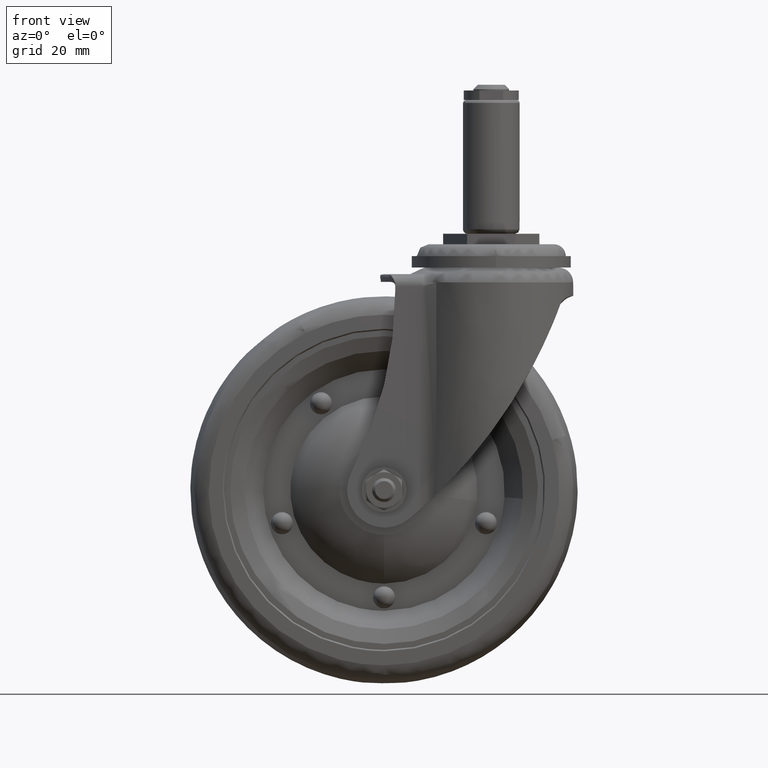
[diagram: clean part render]
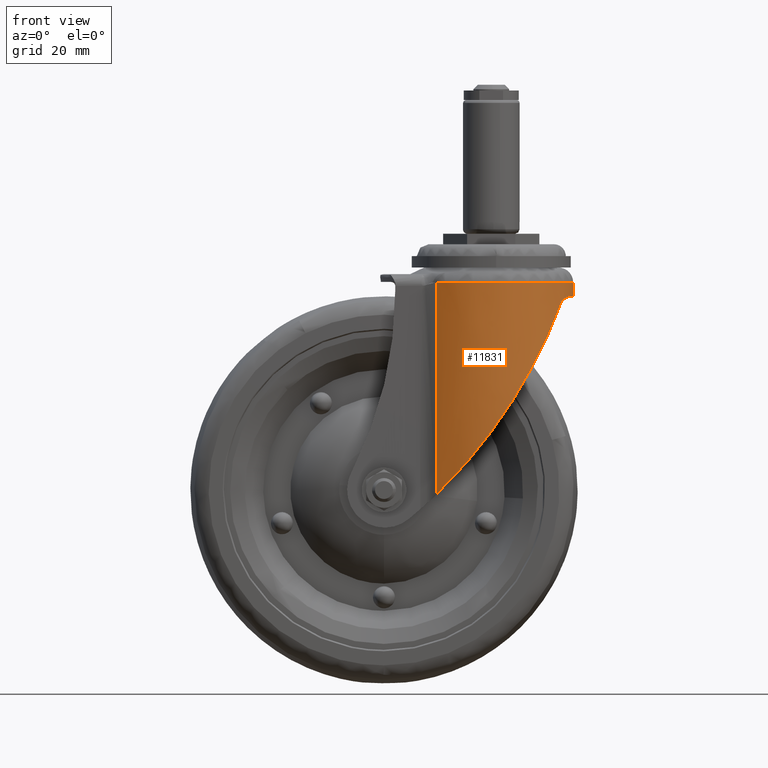
[diagram: same view with one face highlighted and labeled with its STEP entity id]
A machine part, front view. The second image highlights one B-rep face of the part: STEP entity #11831.
In plain terms, the highlighted face is a freeform B-spline surface patch.
Its self-contained STEP definition (entity closure, byte-faithful):
#9174=CARTESIAN_POINT('',(-18.434040863337351,20.406766952381449,-15.314989000000050));
#9175=VERTEX_POINT('',#9174);
#9176=CARTESIAN_POINT('',(17.950478997971452,20.833393956389720,-15.314999156944291));
#9177=VERTEX_POINT('',#9176);
#9178=CARTESIAN_POINT('',(-18.434040863337351,20.406766952381449,-15.314989000000050));
#9179=CARTESIAN_POINT('',(-0.429978776232528,36.670372892223099,-15.314994078472163));
#9180=CARTESIAN_POINT('',(17.950478997971445,20.833393956389724,-15.314999156944284));
#9188=(BOUNDED_CURVE()B_SPLINE_CURVE(2,(#9178,#9179,#9180),.UNSPECIFIED.,.F.,.U.)B_SPLINE_CURVE_WITH_KNOTS((3,3),(0.0,0.311865964459015),.UNSPECIFIED.)CURVE()GEOMETRIC_REPRESENTATION_ITEM()RATIONAL_B_SPLINE_CURVE((1.0,0.737065273776559,0.966132899453761))REPRESENTATION_ITEM(''));
#9189=EDGE_CURVE('',#9175,#9177,#9188,.T.);
#9239=CARTESIAN_POINT('',(-18.434040863337351,-20.406766952381449,-15.314989000000050));
#9240=VERTEX_POINT('',#9239);
#9272=CARTESIAN_POINT('',(27.491315205290750,-0.691077624691770,-15.314988999927690));
#9273=VERTEX_POINT('',#9272);
#9274=CARTESIAN_POINT('',(27.491315205290743,-0.691077624691770,-15.314988999927687));
#9275=CARTESIAN_POINT('',(27.221939112714360,-11.406954980857277,-15.314989000000049));
#9276=CARTESIAN_POINT('',(19.771567708382339,-19.113741401223699,-15.314989000000050));
#9277=CARTESIAN_POINT('',(1.293765859722396,-38.227482802447369,-15.314989000000050));
#9278=CARTESIAN_POINT('',(-18.434040863337369,-20.406766952381449,-15.314989000000050));
#9286=(BOUNDED_CURVE()B_SPLINE_CURVE(2,(#9274,#9275,#9276,#9277,#9278),.UNSPECIFIED.,.F.,.U.)B_SPLINE_CURVE_WITH_KNOTS((3,2,3),(0.505180071738647,0.666666666666667,1.0),.UNSPECIFIED.)CURVE()GEOMETRIC_REPRESENTATION_ITEM()RATIONAL_B_SPLINE_CURVE((0.859618787656025,0.863850376555809,1.0,0.718966098486631,1.0))REPRESENTATION_ITEM(''));
#9287=EDGE_CURVE('',#9273,#9240,#9286,.T.);
#9371=CARTESIAN_POINT('',(17.950478997971445,20.833393956389724,-15.314999156944284));
#9372=CARTESIAN_POINT('',(18.900220655129534,20.015077089441785,-15.314998668174223));
#9373=CARTESIAN_POINT('',(19.771567708368959,19.113741401208159,-15.314998160366770));
#9374=CARTESIAN_POINT('',(27.780901164627341,10.828755463342507,-15.314993492652393));
#9375=CARTESIAN_POINT('',(27.491315205290746,-0.691077624691770,-15.314988999927689));
#9383=(BOUNDED_CURVE()B_SPLINE_CURVE(2,(#9371,#9372,#9373,#9374,#9375),.UNSPECIFIED.,.F.,.U.)B_SPLINE_CURVE_WITH_KNOTS((3,2,3),(0.311865964459015,0.333333333333333,0.505180071738647),.UNSPECIFIED.)CURVE()GEOMETRIC_REPRESENTATION_ITEM()RATIONAL_B_SPLINE_CURVE((0.966132899453761,0.981900824710071,1.0,0.855115721930822,0.859618787656024))REPRESENTATION_ITEM(''));
#9384=EDGE_CURVE('',#9177,#9273,#9383,.T.);
#11219=CARTESIAN_POINT('',(-18.434040863337351,-20.406766952381449,-86.419411327150399));
#11220=VERTEX_POINT('',#11219);
#11240=CARTESIAN_POINT('',(-18.434040863337351,-20.406766952381449,-15.314989000000050));
#11241=CARTESIAN_POINT('',(-18.434040863337351,-20.406766952381449,-86.419411327150399));
#11242=QUASI_UNIFORM_CURVE('',1,(#11240,#11241),.UNSPECIFIED.,.F.,.U.);
#11243=EDGE_CURVE('',#9240,#11220,#11242,.T.);
#11433=CARTESIAN_POINT('',(-18.434040863337401,20.406766952381449,-86.419411327150499));
#11434=VERTEX_POINT('',#11433);
#11435=CARTESIAN_POINT('',(-18.434040863337401,20.406766952381449,-86.419411327150499));
#11436=CARTESIAN_POINT('',(-18.434040863337351,20.406766952381449,-15.314989000000050));
#11437=QUASI_UNIFORM_CURVE('',1,(#11435,#11436),.UNSPECIFIED.,.F.,.U.);
#11438=EDGE_CURVE('',#11434,#9175,#11437,.T.);
#11584=CARTESIAN_POINT('',(-19.255863254799230,19.633179322577181,-88.197021885331068));
#11585=CARTESIAN_POINT('',(-19.255863254799230,19.633179322577181,-13.492938177792610));
#11586=CARTESIAN_POINT('',(0.377316067777950,38.889042577376401,-88.197021885331083));
#11587=CARTESIAN_POINT('',(0.377316067777950,38.889042577376401,-13.492938177792610));
#11588=CARTESIAN_POINT('',(19.633179322577170,19.255863254799230,-88.197021885331068));
#11589=CARTESIAN_POINT('',(19.633179322577170,19.255863254799230,-13.492938177792610));
#11590=CARTESIAN_POINT('',(38.889042577376401,-0.377316067777942,-88.197021885331083));
#11591=CARTESIAN_POINT('',(38.889042577376401,-0.377316067777942,-13.492938177792610));
#11592=CARTESIAN_POINT('',(19.255863254799230,-19.633179322577170,-88.197021885331068));
#11593=CARTESIAN_POINT('',(19.255863254799230,-19.633179322577170,-13.492938177792610));
#11594=CARTESIAN_POINT('',(-0.377316067777932,-38.889042577376401,-88.197021885331083));
#11595=CARTESIAN_POINT('',(-0.377316067777932,-38.889042577376401,-13.492938177792610));
#11596=CARTESIAN_POINT('',(-19.633179322577170,-19.255863254799241,-88.197021885331068));
#11597=CARTESIAN_POINT('',(-19.633179322577170,-19.255863254799241,-13.492938177792610));
#11605=(BOUNDED_SURFACE()B_SPLINE_SURFACE(1,2,((#11584,#11586,#11588,#11590,#11592,#11594,#11596),(#11585,#11587,#11589,#11591,#11593,#11595,#11597)),.UNSPECIFIED.,.F.,.F.,.U.)B_SPLINE_SURFACE_WITH_KNOTS((2,2),(3,2,2,3),(0.0,74.704083707538473),(0.0,45.563491861040433,91.126983722080865,136.690475583121300),.UNSPECIFIED.)GEOMETRIC_REPRESENTATION_ITEM()RATIONAL_B_SPLINE_SURFACE(((1.0,0.707106781186548,1.0,0.707106781186548,1.0,0.707106781186548,1.0),(1.0,0.707106781186548,1.0,0.707106781186548,1.0,0.707106781186548,1.0)))REPRESENTATION_ITEM('')SURFACE());
#11606=CARTESIAN_POINT('',(23.210853167600149,14.748094630565140,-22.579567991240548));
#11607=VERTEX_POINT('',#11606);
#11608=CARTESIAN_POINT('',(-18.434040863337401,20.406766952381449,-86.419411327150499));
#11609=CARTESIAN_POINT('',(-18.114330600401139,20.695571998270349,-86.109964928882405));
#11610=CARTESIAN_POINT('',(-17.792135197032941,20.972989615516688,-85.795706876387499));
#11611=CARTESIAN_POINT('',(-16.791749538861719,21.795716588598669,-84.812096195782715));
#11612=CARTESIAN_POINT('',(-16.106358573095200,22.305475738060100,-84.127179838570058));
#11613=CARTESIAN_POINT('',(-14.721555822423820,23.242737114065619,-82.718768741971772));
#11614=CARTESIAN_POINT('',(-14.022129872635460,23.670201524165730,-81.995263770256130));
#11615=CARTESIAN_POINT('',(-12.612925997162980,24.450207854939890,-80.510764125417850));
#11616=CARTESIAN_POINT('',(-11.903139576113810,24.802727580927719,-79.749763623718508));
#11617=CARTESIAN_POINT('',(-11.011312293551860,25.199982703868240,-78.775436843055033));
#11618=CARTESIAN_POINT('',(-10.832586304415781,25.277314302249120,-78.579273664790222));
#11619=CARTESIAN_POINT('',(-10.475322912396280,25.427448835035140,-78.185314160309744));
#11620=CARTESIAN_POINT('',(-10.296986437768080,25.500171165916420,-77.987740894375250));
#11621=CARTESIAN_POINT('',(-9.762887994876092,25.711527662936781,-77.393253726284513));
#11622=CARTESIAN_POINT('',(-9.408037443193456,25.843355939257261,-76.994572792866634));
#11623=CARTESIAN_POINT('',(-8.347316261806546,26.213225100473121,-75.791553564347865));
#11624=CARTESIAN_POINT('',(-7.645281151427469,26.425704872143100,-74.980242949274142));
#11625=CARTESIAN_POINT('',(-6.252276638727106,26.789498664715751,-73.339400708979767));
#11626=CARTESIAN_POINT('',(-5.561305486730891,26.940795580302890,-72.509867932099098));
#11627=CARTESIAN_POINT('',(-4.191124133632424,27.187663814916029,-70.832834654806021));
#11628=CARTESIAN_POINT('',(-3.511912777406409,27.283224156988840,-69.985333441645878));
#11629=CARTESIAN_POINT('',(-2.165848143823872,27.422927516487078,-68.272525990752214));
#11630=CARTESIAN_POINT('',(-1.498994071780109,27.467063290365751,-67.407219309093875));
#11631=CARTESIAN_POINT('',(-0.508377120403850,27.497285137982221,-66.095972183241088));
#11632=CARTESIAN_POINT('',(-0.179781688758109,27.501355983398810,-65.656674752656997));
#11633=CARTESIAN_POINT('',(0.310650231818936,27.498731280347840,-64.994409873920475));
#11634=CARTESIAN_POINT('',(0.473717356886482,27.496400893907740,-64.773101761941660));
#11635=CARTESIAN_POINT('',(0.799023846444448,27.488871041669199,-64.329379520026137));
#11636=CARTESIAN_POINT('',(0.961359221335940,27.483667198984399,-64.106832748164706));
#11637=CARTESIAN_POINT('',(1.769607448569998,27.450633464268499,-62.993185411469383));
#11638=CARTESIAN_POINT('',(2.404879511714453,27.401846033938028,-62.099866233587839));
#11639=CARTESIAN_POINT('',(4.277954554273106,27.194255845042179,-59.412280782017767));
#11640=CARTESIAN_POINT('',(5.483070149325093,26.974523966298449,-57.610359187532183));
#11641=CARTESIAN_POINT('',(7.811097773235298,26.394615985988281,-53.984689433147132));
#11642=CARTESIAN_POINT('',(8.933991730503234,26.034350207138381,-52.160948318543753));
#11643=CARTESIAN_POINT('',(11.101002350557771,25.186729556683950,-48.491038372583994));
#11644=CARTESIAN_POINT('',(12.145109684981710,24.699353907482749,-46.644868039255734));
#11645=CARTESIAN_POINT('',(13.653919371270661,23.877781073200030,-43.858879134052877));
#11646=CARTESIAN_POINT('',(14.147289431926779,23.588785920640898,-42.927433022918287));
#11647=CARTESIAN_POINT('',(14.873145684659370,23.132686664394139,-41.526161046438517));
#11648=CARTESIAN_POINT('',(15.112730850452330,22.976882139594260,-41.058387056623211));
#11649=CARTESIAN_POINT('',(15.468573116427629,22.737495077415350,-40.355714811801967));
#11650=CARTESIAN_POINT('',(15.586643077152241,22.656720656018749,-40.121231699286668));
#11651=CARTESIAN_POINT('',(15.821333877500701,22.493461886424981,-39.652477332334101));
#11652=CARTESIAN_POINT('',(15.937956166487590,22.410977939310680,-39.418204577198331));
#11653=CARTESIAN_POINT('',(16.981098752939300,21.660945008390360,-37.310704186303973));
#11654=CARTESIAN_POINT('',(17.862503107929371,20.940072032706549,-35.443995159643947));
#11655=CARTESIAN_POINT('',(19.119186243229372,19.774557539946130,-32.656681422798172));
#11656=CARTESIAN_POINT('',(19.527159969514951,19.371942680723400,-31.729731098952708));
#11657=CARTESIAN_POINT('',(20.321611632959051,18.536834690406131,-29.881079542150250));
#11658=CARTESIAN_POINT('',(20.708090499783019,18.104354630800749,-28.959372436443608));
#11659=CARTESIAN_POINT('',(21.459740805142051,17.206748481950939,-27.122613372531930));
#11660=CARTESIAN_POINT('',(21.824914232460259,16.741645696098949,-26.207551084451090));
#11661=CARTESIAN_POINT('',(22.533942636811020,15.774378311327050,-24.386193458895779));
#11662=CARTESIAN_POINT('',(22.877801744259870,15.272257776927880,-23.479878744662951));
#11663=CARTESIAN_POINT('',(23.210853167600149,14.748094630565140,-22.579567991240548));
#11664=B_SPLINE_CURVE_WITH_KNOTS('',3,(#11608,#11609,#11610,#11611,#11612,#11613,#11614,#11615,#11616,#11617,#11618,#11619,#11620,#11621,#11622,#11623,#11624,#11625,#11626,#11627,#11628,#11629,#11630,#11631,#11632,#11633,#11634,#11635,#11636,#11637,#11638,#11639,#11640,#11641,#11642,#11643,#11644,#11645,#11646,#11647,#11648,#11649,#11650,#11651,#11652,#11653,#11654,#11655,#11656,#11657,#11658,#11659,#11660,#11661,#11662,#11663),.UNSPECIFIED.,.F.,.U.,(4,2,2,2,2,2,2,2,2,2,2,2,2,2,2,2,2,2,2,2,2,2,2,2,2,2,2,4),(0.617503068958084,0.624999999999997,0.640624999999997,0.656249999999996,0.671874999999996,0.675781249999996,0.679687499999997,0.687499999999997,0.703124999999997,0.718749999999998,0.734374999999998,0.749999999999998,0.757812499999999,0.761718749999999,0.765624999999999,0.781249999999999,0.812500000000000,0.843750000000000,0.875000000000001,0.890625000000001,0.898437500000001,0.902343750000001,0.906250000000001,0.937500000000001,0.953125000000001,0.968750000000001,0.984375000000000,1.0),.UNSPECIFIED.);
#11665=EDGE_CURVE('',#11434,#11607,#11664,.T.);
#11666=ORIENTED_EDGE('',*,*,#11665,.F.);
#11667=ORIENTED_EDGE('',*,*,#11438,.T.);
#11668=ORIENTED_EDGE('',*,*,#9189,.T.);
#11669=ORIENTED_EDGE('',*,*,#9384,.T.);
#11670=ORIENTED_EDGE('',*,*,#9287,.T.);
#11671=ORIENTED_EDGE('',*,*,#11243,.T.);
#11672=CARTESIAN_POINT('',(23.210853167600149,-14.748094630565140,-22.579567991240548));
#11673=VERTEX_POINT('',#11672);
#11674=CARTESIAN_POINT('',(23.210853167600170,-14.748094630565170,-22.579567991240541));
#11675=CARTESIAN_POINT('',(22.878007453622310,-15.271934027323169,-23.479322667318449));
#11676=CARTESIAN_POINT('',(22.534521231237239,-15.773518760541920,-24.384658511145759));
#11677=CARTESIAN_POINT('',(21.826586424739990,-16.739434466361342,-26.203304039549700));
#11678=CARTESIAN_POINT('',(21.462133761253799,-17.203720103318691,-27.116632739708979));
#11679=CARTESIAN_POINT('',(20.712295323401399,-18.099502573703159,-28.949229337058419));
#11680=CARTESIAN_POINT('',(20.326907578699259,-18.530975503070660,-29.868507339036270));
#11681=CARTESIAN_POINT('',(19.535038856611830,-19.363947987924661,-31.711641982718572));
#11682=CARTESIAN_POINT('',(19.128556943566188,-19.765434144957400,-32.635504361569353));
#11683=CARTESIAN_POINT('',(17.877007359320569,-20.927468040888439,-35.412595227897050));
#11684=CARTESIAN_POINT('',(16.999898136257151,-21.645892484329519,-37.271216364147080));
#11685=CARTESIAN_POINT('',(15.617098415459290,-22.642416757127030,-40.067169740321397));
#11686=CARTESIAN_POINT('',(15.144960222298620,-22.960989643194580,-41.000522471819032));
#11687=CARTESIAN_POINT('',(14.540344009726519,-23.341997026270651,-42.168828358462520));
#11688=CARTESIAN_POINT('',(14.418698256158370,-23.417336789585899,-42.402570723344979));
#11689=CARTESIAN_POINT('',(14.173949414375150,-23.566282687725110,-42.870217156207602));
#11690=CARTESIAN_POINT('',(14.050795325356599,-23.639918538168491,-43.104217349774459));
#11691=CARTESIAN_POINT('',(13.679535600772359,-23.857969251644661,-43.805691212616480));
#11692=CARTESIAN_POINT('',(13.429728387446140,-23.999477141571639,-44.272462296727170));
#11693=CARTESIAN_POINT('',(12.169150165314029,-24.687687342567241,-46.601907337922597));
#11694=CARTESIAN_POINT('',(11.123783557588411,-25.176670791489919,-48.451328315521920));
#11695=CARTESIAN_POINT('',(8.957773505966332,-26.026171570074279,-52.121778287832797));
#11696=CARTESIAN_POINT('',(7.837135932242301,-26.386698163539521,-53.942809613374742));
#11697=CARTESIAN_POINT('',(5.518250799035418,-26.967154979959020,-57.556862253183859));
#11698=CARTESIAN_POINT('',(4.320014859120239,-27.187157409630831,-59.349879838381717));
#11699=CARTESIAN_POINT('',(2.461862633217328,-27.396674003881099,-62.019065984464731));
#11700=CARTESIAN_POINT('',(1.832335722624307,-27.446363400616999,-62.905408962493858));
#11701=CARTESIAN_POINT('',(0.552418985321303,-27.501911776889081,-64.671500079661371));
#11702=CARTESIAN_POINT('',(-0.097969857848080,-27.507778569090078,-65.551247639763474));
#11703=CARTESIAN_POINT('',(-0.924433068920903,-27.484955266377678,-66.646957330640817));
#11704=CARTESIAN_POINT('',(-1.090399918529571,-27.478880207971049,-66.865900702826536));
#11705=CARTESIAN_POINT('',(-1.423694486725496,-27.463629102411431,-67.303394745740704));
#11706=CARTESIAN_POINT('',(-1.591096107514684,-27.454448210101098,-67.522041378040740));
#11707=CARTESIAN_POINT('',(-2.094859467069771,-27.422159236484571,-68.176746843699405));
#11708=CARTESIAN_POINT('',(-2.432113007851986,-27.394354623905940,-68.610708807963249));
#11709=CARTESIAN_POINT('',(-3.447970869939691,-27.291479488169319,-69.905052975567429));
#11710=CARTESIAN_POINT('',(-4.130675850828118,-27.196976456019492,-70.757896636518296));
#11711=CARTESIAN_POINT('',(-5.506217965641431,-26.952171991302290,-72.443319176395931));
#11712=CARTESIAN_POINT('',(-6.199056481171867,-26.801879969829631,-73.275898874028755));
#11713=CARTESIAN_POINT('',(-7.593941434837703,-26.440520506566589,-74.920523318187350));
#11714=CARTESIAN_POINT('',(-8.295989935080593,-26.229467592884241,-75.732569388032928));
#11715=CARTESIAN_POINT('',(-9.708194659208830,-25.740228741563900,-77.335713842104354));
#11716=CARTESIAN_POINT('',(-10.418354107034530,-25.462066064772671,-78.126814410422583));
#11717=CARTESIAN_POINT('',(-11.310274966295770,-25.067224359677990,-79.102218902111360));
#11718=CARTESIAN_POINT('',(-11.489018223403759,-24.985821264169321,-79.296785986091123));
#11719=CARTESIAN_POINT('',(-11.845776425376799,-24.818670086503559,-79.683345125229110));
#11720=CARTESIAN_POINT('',(-12.380049824950390,-24.561334895209630,-80.259576202170294));
#11721=CARTESIAN_POINT('',(-12.911526003525969,-24.283837641679050,-80.824958944012764));
#11722=CARTESIAN_POINT('',(-13.970150413034659,-23.700928142708008,-81.941151044673447));
#11723=CARTESIAN_POINT('',(-14.670154949735890,-23.275168354197049,-82.665867745958067));
#11724=CARTESIAN_POINT('',(-16.054957103645449,-22.342454219838519,-84.075481257019220));
#11725=CARTESIAN_POINT('',(-16.739768191711761,-21.835533828633061,-84.760387742546257));
#11726=CARTESIAN_POINT('',(-17.752076090684699,-21.007234197864950,-85.756584868832562));
#11727=CARTESIAN_POINT('',(-18.087018485551390,-20.719791808334922,-86.083450141937746));
#11728=CARTESIAN_POINT('',(-18.424085900122979,-20.415756260668449,-86.409775373872577));
#11729=CARTESIAN_POINT('',(-18.429063703911940,-20.411262969868218,-86.414593953787360));
#11730=CARTESIAN_POINT('',(-18.434040863337351,-20.406766952381449,-86.419411327150399));
#11731=B_SPLINE_CURVE_WITH_KNOTS('',3,(#11674,#11675,#11676,#11677,#11678,#11679,#11680,#11681,#11682,#11683,#11684,#11685,#11686,#11687,#11688,#11689,#11690,#11691,#11692,#11693,#11694,#11695,#11696,#11697,#11698,#11699,#11700,#11701,#11702,#11703,#11704,#11705,#11706,#11707,#11708,#11709,#11710,#11711,#11712,#11713,#11714,#11715,#11716,#11717,#11718,#11719,#11720,#11721,#11722,#11723,#11724,#11725,#11726,#11727,#11728,#11729,#11730),.UNSPECIFIED.,.F.,.U.,(4,2,2,2,2,2,2,2,2,2,2,2,2,2,2,2,2,2,2,2,2,2,2,1,2,2,2,2,4),(0.0,0.015625000000000,0.031250000000000,0.046875000000000,0.062500000000000,0.093750000000000,0.109375000000000,0.113281250000000,0.117187500000000,0.125000000000000,0.156250000000000,0.187500000000000,0.218750000000000,0.234375000000000,0.250000000000000,0.253906250000000,0.257812500000000,0.265625000000000,0.281250000000000,0.296875000000000,0.312500000000001,0.328125000000001,0.332031250000001,0.335937500000001,0.343750000000001,0.359375000000001,0.375000000000001,0.382812500000001,0.382929619541299),.UNSPECIFIED.);
#11732=EDGE_CURVE('',#11673,#11220,#11731,.T.);
#11733=ORIENTED_EDGE('',*,*,#11732,.F.);
#11734=CARTESIAN_POINT('',(27.352143000000101,-2.847854158405190,-19.872998999999950));
#11735=VERTEX_POINT('',#11734);
#11736=CARTESIAN_POINT('',(23.210853167600149,-14.748094630565140,-22.579567991240548));
#11737=CARTESIAN_POINT('',(23.268521395018350,-14.657335083997999,-22.447985415271361));
#11738=CARTESIAN_POINT('',(23.330540716443270,-14.558550632259371,-22.323451291131001));
#11739=CARTESIAN_POINT('',(23.461541123176708,-14.346484150887060,-22.086748647959361));
#11740=CARTESIAN_POINT('',(23.529272040215481,-14.235221195408229,-21.976801281183171));
#11741=CARTESIAN_POINT('',(23.736973592514062,-13.888080757519830,-21.667526697351381));
#11742=CARTESIAN_POINT('',(23.881360051234012,-13.638967989590171,-21.488547660868580));
#11743=CARTESIAN_POINT('',(24.101256465261709,-13.243945689550360,-21.250057761549701));
#11744=CARTESIAN_POINT('',(24.175313978389820,-13.108330850649869,-21.175492014600909));
#11745=CARTESIAN_POINT('',(24.322060184264611,-12.833998725635629,-21.036996367224081));
#11746=CARTESIAN_POINT('',(24.394964041682432,-12.694909199218261,-20.972812860439142));
#11747=CARTESIAN_POINT('',(24.611756621191070,-12.272391222840140,-20.793177524122029));
#11748=CARTESIAN_POINT('',(24.753705629896171,-11.983737165475871,-20.690540595819041));
#11749=CARTESIAN_POINT('',(25.030467570228119,-11.394365876370010,-20.511076619608890));
#11750=CARTESIAN_POINT('',(25.165292341033471,-11.093634193450040,-20.434309427779109));
#11751=CARTESIAN_POINT('',(25.361132085974528,-10.634403672508640,-20.334308255144990));
#11752=CARTESIAN_POINT('',(25.425442544143468,-10.479734345152011,-20.303473651194139));
#11753=CARTESIAN_POINT('',(25.551303534396379,-10.169013654923040,-20.246532785269419));
#11754=CARTESIAN_POINT('',(25.612805717812051,-10.013097328269930,-20.220441164401731));
#11755=CARTESIAN_POINT('',(25.793007619046609,-9.543738026993815,-20.148361647271841));
#11756=CARTESIAN_POINT('',(25.907402357991518,-9.228686858314907,-20.108536002045039));
#11757=CARTESIAN_POINT('',(26.124625415355951,-8.594538149777479,-20.041347653009701));
#11758=CARTESIAN_POINT('',(26.227454364809670,-8.275439883886433,-20.013998390917099));
#11759=CARTESIAN_POINT('',(26.518469472220691,-7.312347664666807,-19.946080459204069));
#11760=CARTESIAN_POINT('',(26.689195362000429,-6.662572809705965,-19.919442747182110));
#11761=CARTESIAN_POINT('',(26.909738115172271,-5.677062219071041,-19.894116104865930));
#11762=CARTESIAN_POINT('',(26.977325619768479,-5.346746130890485,-19.888169493814129));
#11763=CARTESIAN_POINT('',(27.069710606278491,-4.848606644082676,-19.881755769098341));
#11764=CARTESIAN_POINT('',(27.099005987182849,-4.682115686279973,-19.880038108156260));
#11765=CARTESIAN_POINT('',(27.154576728890468,-4.348250953615624,-19.877266105238402));
#11766=CARTESIAN_POINT('',(27.180874030893300,-4.180722883164155,-19.876211178232172));
#11767=CARTESIAN_POINT('',(27.262908357901470,-3.624607538730778,-19.873552559010651));
#11768=CARTESIAN_POINT('',(27.311715016368460,-3.236161468085775,-19.872987707398849));
#11769=CARTESIAN_POINT('',(27.352143000000101,-2.847854158405190,-19.872998999999950));
#11770=B_SPLINE_CURVE_WITH_KNOTS('',3,(#11736,#11737,#11738,#11739,#11740,#11741,#11742,#11743,#11744,#11745,#11746,#11747,#11748,#11749,#11750,#11751,#11752,#11753,#11754,#11755,#11756,#11757,#11758,#11759,#11760,#11761,#11762,#11763,#11764,#11765,#11766,#11767,#11768,#11769),.UNSPECIFIED.,.F.,.U.,(4,2,2,2,2,2,2,2,2,2,2,2,2,2,2,2,4),(0.0,0.015625000000000,0.031250000000000,0.062500000000000,0.078125000000000,0.093749999999999,0.124999999999999,0.156249999999999,0.171874999999999,0.187499999999999,0.218749999999999,0.249999999999999,0.312499999999999,0.343749999999999,0.359374999999999,0.374999999999999,0.411242879470781),.UNSPECIFIED.);
#11771=EDGE_CURVE('',#11673,#11735,#11770,.T.);
#11772=ORIENTED_EDGE('',*,*,#11771,.T.);
#11773=CARTESIAN_POINT('',(27.352143000000101,2.847854158405190,-19.872998999999950));
#11774=VERTEX_POINT('',#11773);
#11775=CARTESIAN_POINT('',(27.352143000000101,2.847854158405188,-19.872998999999950));
#11776=CARTESIAN_POINT('',(27.648656267993239,6.505213E-015,-19.872998999999947));
#11777=CARTESIAN_POINT('',(27.352143000000101,-2.847854158405180,-19.872998999999950));
#11785=(BOUNDED_CURVE()B_SPLINE_CURVE(2,(#11775,#11776,#11777),.UNSPECIFIED.,.F.,.U.)CURVE()GEOMETRIC_REPRESENTATION_ITEM()QUASI_UNIFORM_CURVE()RATIONAL_B_SPLINE_CURVE((1.0,0.994623381818185,1.0))REPRESENTATION_ITEM(''));
#11786=EDGE_CURVE('',#11774,#11735,#11785,.T.);
#11787=ORIENTED_EDGE('',*,*,#11786,.F.);
#11788=CARTESIAN_POINT('',(27.352143000000101,2.847854158405190,-19.872998999999950));
#11789=CARTESIAN_POINT('',(27.311847766734122,3.234885507203980,-19.872988124406010));
#11790=CARTESIAN_POINT('',(27.263257739665871,3.621779483607117,-19.873548691640121));
#11791=CARTESIAN_POINT('',(27.157147680442659,4.341960146044727,-19.876971488687481));
#11792=CARTESIAN_POINT('',(27.101776428932659,4.675282545664105,-19.879544307805421));
#11793=CARTESIAN_POINT('',(26.978336734220541,5.341714800730202,-19.888082669551789));
#11794=CARTESIAN_POINT('',(26.910515339187359,5.673450624847200,-19.894034827599921));
#11795=CARTESIAN_POINT('',(26.689262674112161,6.662551043265116,-19.919416128769541));
#11796=CARTESIAN_POINT('',(26.517928370173529,7.314502612913231,-19.946147914552508));
#11797=CARTESIAN_POINT('',(26.225854437210749,8.280551916107084,-20.014400301147770));
#11798=CARTESIAN_POINT('',(26.122648099256821,8.600584493274187,-20.041893571231451));
#11799=CARTESIAN_POINT('',(25.904630081836359,9.236501269137083,-20.109459242666020));
#11800=CARTESIAN_POINT('',(25.789817763597650,9.552386196557219,-20.149518010554239));
#11801=CARTESIAN_POINT('',(25.608965716531682,10.022922076951311,-20.222038793824229));
#11802=CARTESIAN_POINT('',(25.547319153964260,10.179010048304530,-20.248266809025189));
#11803=CARTESIAN_POINT('',(25.421786761003730,10.488590389386170,-20.305199372751328));
#11804=CARTESIAN_POINT('',(25.357844864720398,10.642229449149781,-20.335925351246409));
#11805=CARTESIAN_POINT('',(25.162674196384909,11.099531066307380,-20.435772273801170));
#11806=CARTESIAN_POINT('',(25.028088561653970,11.399591827027670,-20.512492560890148));
#11807=CARTESIAN_POINT('',(24.751170771914030,11.988973003657740,-20.692312576229920));
#11808=CARTESIAN_POINT('',(24.608827119861370,12.278307500913771,-20.795342144686931));
#11809=CARTESIAN_POINT('',(24.427114247902949,12.632195130060650,-20.946242748371080));
#11810=CARTESIAN_POINT('',(24.390575734220221,12.702595576061579,-20.977550416843290));
#11811=CARTESIAN_POINT('',(24.317536127796430,12.841867460637040,-21.042247462565740));
#11812=CARTESIAN_POINT('',(24.280990641828168,12.910826064137140,-21.075672647687309));
#11813=CARTESIAN_POINT('',(24.171372426281021,13.115589151114440,-21.179395255748620));
#11814=CARTESIAN_POINT('',(24.098313770665332,13.249285972549840,-21.253127750010080));
#11815=CARTESIAN_POINT('',(23.952829841128828,13.510523896286800,-21.411159969173902));
#11816=CARTESIAN_POINT('',(23.880402166532271,13.638068209738091,-21.495452312883241));
#11817=CARTESIAN_POINT('',(23.772798924555911,13.824222890031560,-21.631209621700989));
#11818=CARTESIAN_POINT('',(23.737105687062350,13.885412322931410,-21.678019482145022));
#11819=CARTESIAN_POINT('',(23.666185346198940,14.005946476498369,-21.775055363070440));
#11820=CARTESIAN_POINT('',(23.630876752664989,14.065426719219230,-21.825404758661669));
#11821=CARTESIAN_POINT('',(23.526525565021259,14.239765669315760,-21.981109230948970));
#11822=CARTESIAN_POINT('',(23.459153474811341,14.350371163093831,-22.090892928279711));
#11823=CARTESIAN_POINT('',(23.330198800931662,14.559081872066090,-22.324242592430569));
#11824=CARTESIAN_POINT('',(23.268606467716609,14.657201200520360,-22.447791295176220));
#11825=CARTESIAN_POINT('',(23.210853167600149,14.748094630565140,-22.579567991240548));
#11826=B_SPLINE_CURVE_WITH_KNOTS('',3,(#11788,#11789,#11790,#11791,#11792,#11793,#11794,#11795,#11796,#11797,#11798,#11799,#11800,#11801,#11802,#11803,#11804,#11805,#11806,#11807,#11808,#11809,#11810,#11811,#11812,#11813,#11814,#11815,#11816,#11817,#11818,#11819,#11820,#11821,#11822,#11823,#11824,#11825),.UNSPECIFIED.,.F.,.U.,(4,2,2,2,2,2,2,2,2,2,2,2,2,2,2,2,2,2,4),(0.588751892890864,0.625000000000000,0.656250000000000,0.687500000000001,0.750000000000001,0.781250000000001,0.812500000000001,0.828125000000001,0.843750000000001,0.875000000000001,0.906250000000001,0.914062500000001,0.921875000000001,0.937500000000000,0.953125000000000,0.960937500000000,0.968750000000000,0.984375000000000,1.0),.UNSPECIFIED.);
#11827=EDGE_CURVE('',#11774,#11607,#11826,.T.);
#11828=ORIENTED_EDGE('',*,*,#11827,.T.);
#11829=EDGE_LOOP('',(#11666,#11667,#11668,#11669,#11670,#11671,#11733,#11772,#11787,#11828));
#11830=FACE_OUTER_BOUND('',#11829,.T.);
#11831=ADVANCED_FACE('',(#11830),#11605,.T.);